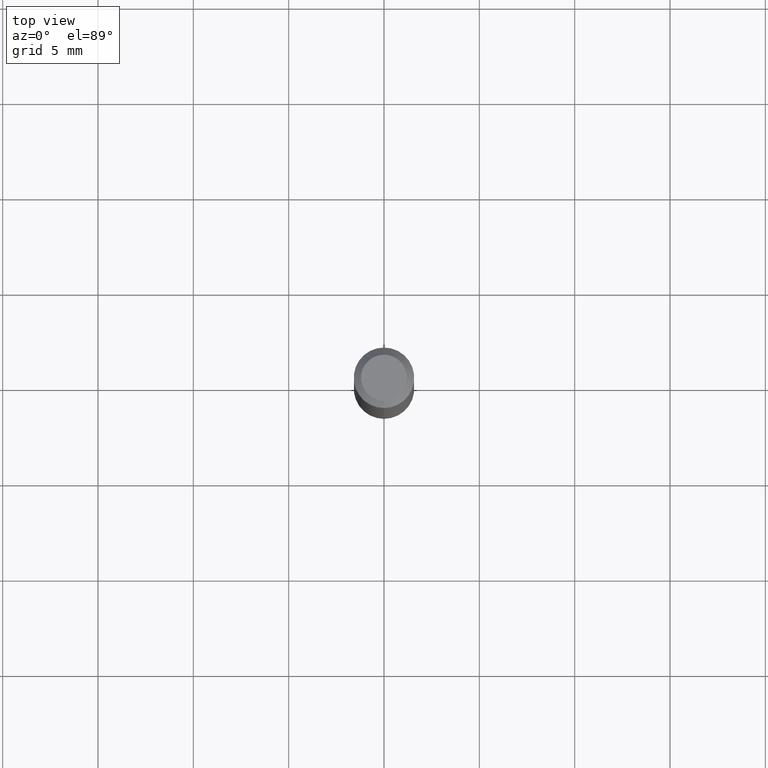
[diagram: clean part render]
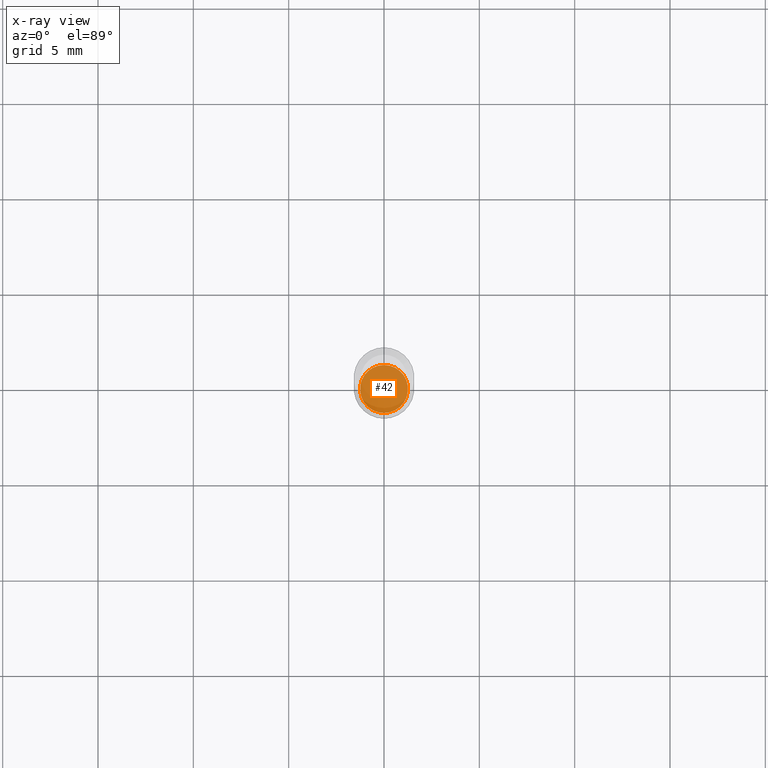
[diagram: x-ray — body ghosted, one internal face saturated and labeled with its STEP entity id]
A machine part, top view, then the same camera in x-ray: the body is ghosted and one INTERNAL B-rep face — a face not visible from any outside direction — is saturated and labeled: STEP entity #42.
In plain terms, the highlighted planar face has unit normal (-0, 0, 1).
Its self-contained STEP definition (entity closure, byte-faithful):
#17 = DIRECTION ( 'NONE',  ( -2.445432708408292326E-29, 3.491533032914144486E-15, 1.000000000000000000 ) ) ;
#42 = ADVANCED_FACE ( 'NONE', ( #235 ), #482, .F. ) ;
#63 = EDGE_CURVE ( 'NONE', #313, #346, #94, .T. ) ;
#94 = CIRCLE ( 'NONE', #441, 0.04949999999999996070 ) ;
#108 = DIRECTION ( 'NONE',  ( -6.982962677686265922E-15, -1.000000000000000000, 5.518884835685384614E-15 ) ) ;
#114 = DIRECTION ( 'NONE',  ( -2.445432708408292326E-29, 3.491533032914144486E-15, 1.000000000000000000 ) ) ;
#117 = CARTESIAN_POINT ( 'NONE',  ( 3.301334156351195229E-29, -4.713569594434094720E-15, -1.350000000000000089 ) ) ;
#158 = DIRECTION ( 'NONE',  ( -6.982962677686265922E-15, -1.000000000000000000, 3.491533032914144486E-15 ) ) ;
#161 = CIRCLE ( 'NONE', #324, 0.04949999999999996070 ) ;
#177 = CARTESIAN_POINT ( 'NONE',  ( -3.456566525454369004E-16, -0.04950000000000467221, -1.349999999999999867 ) ) ;
#194 = AXIS2_PLACEMENT_3D ( 'NONE', #117, #445, #158 ) ;
#196 = ORIENTED_EDGE ( 'NONE', *, *, #63, .F. ) ;
#235 = FACE_OUTER_BOUND ( 'NONE', #316, .T. ) ;
#287 = CARTESIAN_POINT ( 'NONE',  ( 3.301334156351195229E-29, -4.713569594434094720E-15, -1.350000000000000089 ) ) ;
#291 = EDGE_CURVE ( 'NONE', #346, #313, #161, .T. ) ;
#313 = VERTEX_POINT ( 'NONE', #177 ) ;
#316 = EDGE_LOOP ( 'NONE', ( #196, #391 ) ) ;
#324 = AXIS2_PLACEMENT_3D ( 'NONE', #287, #17, #490 ) ;
#333 = CARTESIAN_POINT ( 'NONE',  ( 3.534950110406824997E-16, 0.04949999999999524919, -1.350000000000000311 ) ) ;
#346 = VERTEX_POINT ( 'NONE', #333 ) ;
#391 = ORIENTED_EDGE ( 'NONE', *, *, #291, .F. ) ;
#441 = AXIS2_PLACEMENT_3D ( 'NONE', #515, #114, #108 ) ;
#445 = DIRECTION ( 'NONE',  ( -2.445432708408292046E-29, 3.491533032914144486E-15, 1.000000000000000000 ) ) ;
#482 = PLANE ( 'NONE',  #194 ) ;
#490 = DIRECTION ( 'NONE',  ( -6.982962677686265922E-15, -1.000000000000000000, 5.518884835685384614E-15 ) ) ;
#515 = CARTESIAN_POINT ( 'NONE',  ( 3.301334156351195229E-29, -4.713569594434094720E-15, -1.350000000000000089 ) ) ;